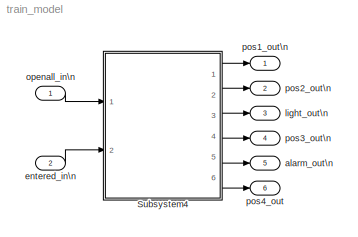
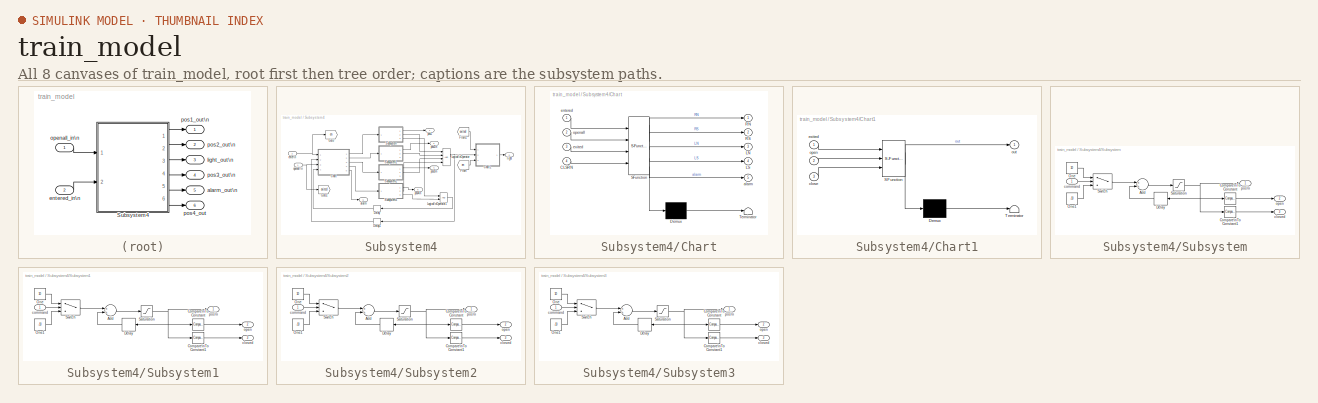
[diagram: thumbnail index - all 8 canvases of the model, root first then tree order]
MODEL train_model
KIND model
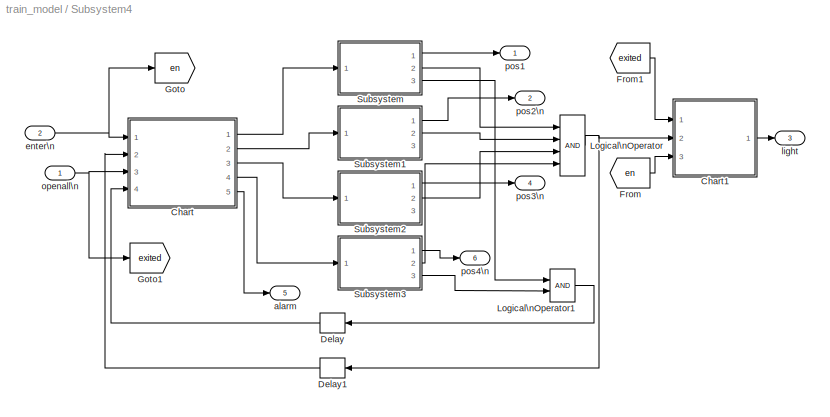
BLOCK [SubSystem] Subsystem4
  Ports = [2, 6]
  RequestExecContextInheritance = off
  SID = 112
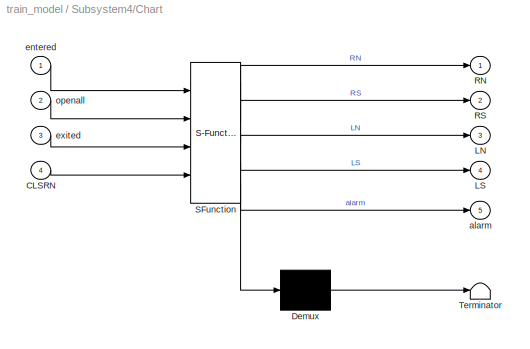
BLOCK [SubSystem] Subsystem4/Chart
  ErrorFcn = Stateflow.Translate.translate
  PermitHierarchicalResolution = ExplicitOnly
  Ports = [4, 5]
  RequestExecContextInheritance = off
  SFBlockType = Chart
  SID = 5
  TreatAsAtomicUnit = on
BLOCK [Demux] Subsystem4/Chart/ Demux 
  Outputs = 1
  Ports = [1, 1]
  SID = 5::94
BLOCK [S-Function] Subsystem4/Chart/ SFunction 
  EnableBusSupport = on
  FunctionName = sf_sfun
  PortCounts = [4 6]
  Ports = [4, 6]
  SFcnIsStateOwnerBlock = off
  SFunctionDeploymentMode = off
  SID = 5::93
  Tag = Stateflow S-Function train_model 3
BLOCK [Terminator] Subsystem4/Chart/ Terminator 
  SID = 5::95
BLOCK [Inport] Subsystem4/Chart/CLSRN
  IconDisplay = Port number
  Port = 4
  SID = 5::108
BLOCK [Outport] Subsystem4/Chart/LN
  IconDisplay = Port number
  Port = 3
  SID = 5::105
BLOCK [Outport] Subsystem4/Chart/LS
  IconDisplay = Port number
  Port = 4
  SID = 5::106
BLOCK [Outport] Subsystem4/Chart/RN
  IconDisplay = Port number
  SID = 5::103
BLOCK [Outport] Subsystem4/Chart/RS
  IconDisplay = Port number
  Port = 2
  SID = 5::104
BLOCK [Outport] Subsystem4/Chart/alarm
  IconDisplay = Port number
  Port = 5
  SID = 5::107
BLOCK [Inport] Subsystem4/Chart/entered
  IconDisplay = Port number
  SID = 5::100
BLOCK [Inport] Subsystem4/Chart/exited
  IconDisplay = Port number
  Port = 3
  SID = 5::102
BLOCK [Inport] Subsystem4/Chart/openall
  IconDisplay = Port number
  Port = 2
  SID = 5::101
BLOCK [SubSystem] Subsystem4/Chart1
  ErrorFcn = Stateflow.Translate.translate
  PermitHierarchicalResolution = ExplicitOnly
  Ports = [3, 1]
  RequestExecContextInheritance = off
  SFBlockType = Chart
  SID = 7
  TreatAsAtomicUnit = on
BLOCK [Demux] Subsystem4/Chart1/ Demux 
  Outputs = 1
  Ports = [1, 1]
  SID = 7::94
BLOCK [S-Function] Subsystem4/Chart1/ SFunction 
  EnableBusSupport = on
  FunctionName = sf_sfun
  PortCounts = [3 2]
  Ports = [3, 2]
  SFcnIsStateOwnerBlock = off
  SFunctionDeploymentMode = off
  SID = 7::93
  Tag = Stateflow S-Function train_model 1
BLOCK [Terminator] Subsystem4/Chart1/ Terminator 
  SID = 7::95
BLOCK [Inport] Subsystem4/Chart1/close
  IconDisplay = Port number
  Port = 3
  SID = 7::99
BLOCK [Inport] Subsystem4/Chart1/exited
  IconDisplay = Port number
  SID = 7::97
BLOCK [Inport] Subsystem4/Chart1/open
  IconDisplay = Port number
  Port = 2
  SID = 7::100
BLOCK [Outport] Subsystem4/Chart1/out
  IconDisplay = Port number
  SID = 7::98
BLOCK [Delay] Subsystem4/Delay
  DelayLength = 1
  InitialCondition = 0
  InputPortMap = u0
  Ports = [1, 1]
  SID = 129
  UseCircularBuffer = on
  UserData = DataTag1
  UserDataPersistent = on
BLOCK [Delay] Subsystem4/Delay1
  DelayLength = 1
  InitialCondition = 0
  InputPortMap = u0
  Ports = [1, 1]
  SID = 131
  UseCircularBuffer = on
  UserData = DataTag2
  UserDataPersistent = on
BLOCK [From] Subsystem4/From
  GotoTag = en
  SID = 109
BLOCK [From] Subsystem4/From1
  GotoTag = exited
  SID = 111
BLOCK [Goto] Subsystem4/Goto
  GotoTag = en
  SID = 103
BLOCK [Goto] Subsystem4/Goto1
  GotoTag = exited
  SID = 110
BLOCK [Logic] Subsystem4/Logical\nOperator
  AllPortsSameDT = off
  Inputs = 4
  OutDataTypeStr = boolean
  Ports = [4, 1]
  SID = 57
BLOCK [Logic] Subsystem4/Logical\nOperator1
  AllPortsSameDT = off
  OutDataTypeStr = boolean
  Ports = [2, 1]
  SID = 127
BLOCK [SubSystem] Subsystem4/Subsystem
  Ports = [1, 3]
  RequestExecContextInheritance = off
  SID = 59
BLOCK [Sum] Subsystem4/Subsystem/Add
  InputSameDT = off
  OutDataTypeStr = Inherit: Inherit via internal rule
  Ports = [2, 1]
  SID = 13
  SaturateOnIntegerOverflow = off
BLOCK [Reference] Subsystem4/Subsystem/Compare\nTo Constant  REF=simulink/Logic and Bit\nOperations/Compare\nTo Constant
  OutDataTypeStr = boolean
  Ports = [1, 1]
  SID = 19
  SourceBlock = simulink/Logic and Bit\nOperations/Compare\nTo Constant
  SourceProductBaseCode = SL
  SourceProductName = Simulink
  SourceType = Compare To Constant
  ZeroCross = on
  const = 80
  relop = >=
BLOCK [Reference] Subsystem4/Subsystem/Compare\nTo Constant1  REF=simulink/Logic and Bit\nOperations/Compare\nTo Constant
  OutDataTypeStr = boolean
  Ports = [1, 1]
  SID = 20
  SourceBlock = simulink/Logic and Bit\nOperations/Compare\nTo Constant
  SourceProductBaseCode = SL
  SourceProductName = Simulink
  SourceType = Compare To Constant
  ZeroCross = on
  const = 10
  relop = <
BLOCK [Delay] Subsystem4/Subsystem/Delay
  DelayLength = 1
  InitialCondition = 0
  InputPortMap = u0
  Ports = [1, 1]
  SID = 10
BLOCK [Constant] Subsystem4/Subsystem/One
  OutDataTypeStr = Inherit: Inherit via back propagation
  SID = 14
  Value = 10
BLOCK [Constant] Subsystem4/Subsystem/One1
  OutDataTypeStr = Inherit: Inherit via back propagation
  SID = 15
  Value = -10
BLOCK [Saturate] Subsystem4/Subsystem/Saturation
  InputPortMap = u0
  LowerLimit = 0
  Ports = [1, 1]
  SID = 11
  UpperLimit = 90
BLOCK [Switch] Subsystem4/Subsystem/Switch
  Criteria = u2 > Threshold
  InputSameDT = off
  SID = 9
  SaturateOnIntegerOverflow = off
BLOCK [Outport] Subsystem4/Subsystem/closed
  IconDisplay = Port number
  Port = 3
  SID = 63
BLOCK [Inport] Subsystem4/Subsystem/command
  IconDisplay = Port number
  OutDataTypeStr = boolean
  SID = 60
BLOCK [Outport] Subsystem4/Subsystem/open
  IconDisplay = Port number
  Port = 2
  SID = 62
BLOCK [Outport] Subsystem4/Subsystem/pos\n
  IconDisplay = Port number
  SID = 61
BLOCK [SubSystem] Subsystem4/Subsystem1
  Ports = [1, 3]
  RequestExecContextInheritance = off
  SID = 64
BLOCK [Sum] Subsystem4/Subsystem1/Add
  InputSameDT = off
  OutDataTypeStr = Inherit: Inherit via internal rule
  Ports = [2, 1]
  SID = 66
  SaturateOnIntegerOverflow = off
BLOCK [Reference] Subsystem4/Subsystem1/Compare\nTo Constant  REF=simulink/Logic and Bit\nOperations/Compare\nTo Constant
  OutDataTypeStr = boolean
  Ports = [1, 1]
  SID = 67
  SourceBlock = simulink/Logic and Bit\nOperations/Compare\nTo Constant
  SourceProductBaseCode = SL
  SourceProductName = Simulink
  SourceType = Compare To Constant
  ZeroCross = on
  const = 80
  relop = >=
BLOCK [Reference] Subsystem4/Subsystem1/Compare\nTo Constant1  REF=simulink/Logic and Bit\nOperations/Compare\nTo Constant
  OutDataTypeStr = boolean
  Ports = [1, 1]
  SID = 68
  SourceBlock = simulink/Logic and Bit\nOperations/Compare\nTo Constant
  SourceProductBaseCode = SL
  SourceProductName = Simulink
  SourceType = Compare To Constant
  ZeroCross = on
  const = 10
  relop = <
BLOCK [Delay] Subsystem4/Subsystem1/Delay
  DelayLength = 1
  InitialCondition = 0
  InputPortMap = u0
  Ports = [1, 1]
  SID = 69
BLOCK [Constant] Subsystem4/Subsystem1/One
  OutDataTypeStr = Inherit: Inherit via back propagation
  SID = 70
  Value = 10
BLOCK [Constant] Subsystem4/Subsystem1/One1
  OutDataTypeStr = Inherit: Inherit via back propagation
  SID = 71
  Value = -10
BLOCK [Saturate] Subsystem4/Subsystem1/Saturation
  InputPortMap = u0
  LowerLimit = 0
  Ports = [1, 1]
  SID = 72
  UpperLimit = 90
BLOCK [Switch] Subsystem4/Subsystem1/Switch
  Criteria = u2 > Threshold
  InputSameDT = off
  SID = 73
  SaturateOnIntegerOverflow = off
BLOCK [Outport] Subsystem4/Subsystem1/closed
  IconDisplay = Port number
  Port = 3
  SID = 76
BLOCK [Inport] Subsystem4/Subsystem1/command
  IconDisplay = Port number
  SID = 65
BLOCK [Outport] Subsystem4/Subsystem1/open
  IconDisplay = Port number
  Port = 2
  SID = 75
BLOCK [Outport] Subsystem4/Subsystem1/pos\n
  IconDisplay = Port number
  SID = 74
BLOCK [SubSystem] Subsystem4/Subsystem2
  Ports = [1, 3]
  RequestExecContextInheritance = off
  SID = 77
BLOCK [Sum] Subsystem4/Subsystem2/Add
  InputSameDT = off
  OutDataTypeStr = Inherit: Inherit via internal rule
  Ports = [2, 1]
  SID = 79
  SaturateOnIntegerOverflow = off
BLOCK [Reference] Subsystem4/Subsystem2/Compare\nTo Constant  REF=simulink/Logic and Bit\nOperations/Compare\nTo Constant
  OutDataTypeStr = boolean
  Ports = [1, 1]
  SID = 80
  SourceBlock = simulink/Logic and Bit\nOperations/Compare\nTo Constant
  SourceProductBaseCode = SL
  SourceProductName = Simulink
  SourceType = Compare To Constant
  ZeroCross = on
  const = 80
  relop = >=
BLOCK [Reference] Subsystem4/Subsystem2/Compare\nTo Constant1  REF=simulink/Logic and Bit\nOperations/Compare\nTo Constant
  OutDataTypeStr = boolean
  Ports = [1, 1]
  SID = 81
  SourceBlock = simulink/Logic and Bit\nOperations/Compare\nTo Constant
  SourceProductBaseCode = SL
  SourceProductName = Simulink
  SourceType = Compare To Constant
  ZeroCross = on
  const = 10
  relop = <
BLOCK [Delay] Subsystem4/Subsystem2/Delay
  DelayLength = 1
  InitialCondition = 0
  InputPortMap = u0
  Ports = [1, 1]
  SID = 82
BLOCK [Constant] Subsystem4/Subsystem2/One
  OutDataTypeStr = Inherit: Inherit via back propagation
  SID = 83
  Value = 10
BLOCK [Constant] Subsystem4/Subsystem2/One1
  OutDataTypeStr = Inherit: Inherit via back propagation
  SID = 84
  Value = -10
BLOCK [Saturate] Subsystem4/Subsystem2/Saturation
  InputPortMap = u0
  LowerLimit = 0
  Ports = [1, 1]
  SID = 85
  UpperLimit = 90
BLOCK [Switch] Subsystem4/Subsystem2/Switch
  Criteria = u2 ~= 0
  InputSameDT = off
  SID = 86
  SaturateOnIntegerOverflow = off
BLOCK [Outport] Subsystem4/Subsystem2/closed
  IconDisplay = Port number
  Port = 3
  SID = 89
BLOCK [Inport] Subsystem4/Subsystem2/command
  IconDisplay = Port number
  SID = 78
BLOCK [Outport] Subsystem4/Subsystem2/open
  IconDisplay = Port number
  Port = 2
  SID = 88
BLOCK [Outport] Subsystem4/Subsystem2/pos\n
  IconDisplay = Port number
  SID = 87
BLOCK [SubSystem] Subsystem4/Subsystem3
  Ports = [1, 3]
  RequestExecContextInheritance = off
  SID = 90
BLOCK [Sum] Subsystem4/Subsystem3/Add
  InputSameDT = off
  OutDataTypeStr = Inherit: Inherit via internal rule
  Ports = [2, 1]
  SID = 92
  SaturateOnIntegerOverflow = off
BLOCK [Reference] Subsystem4/Subsystem3/Compare\nTo Constant  REF=simulink/Logic and Bit\nOperations/Compare\nTo Constant
  OutDataTypeStr = boolean
  Ports = [1, 1]
  SID = 93
  SourceBlock = simulink/Logic and Bit\nOperations/Compare\nTo Constant
  SourceProductBaseCode = SL
  SourceProductName = Simulink
  SourceType = Compare To Constant
  ZeroCross = on
  const = 80
  relop = >=
BLOCK [Reference] Subsystem4/Subsystem3/Compare\nTo Constant1  REF=simulink/Logic and Bit\nOperations/Compare\nTo Constant
  OutDataTypeStr = boolean
  Ports = [1, 1]
  SID = 94
  SourceBlock = simulink/Logic and Bit\nOperations/Compare\nTo Constant
  SourceProductBaseCode = SL
  SourceProductName = Simulink
  SourceType = Compare To Constant
  ZeroCross = on
  const = 10
  relop = <
BLOCK [Delay] Subsystem4/Subsystem3/Delay
  DelayLength = 1
  InitialCondition = 0
  InputPortMap = u0
  Ports = [1, 1]
  SID = 95
BLOCK [Constant] Subsystem4/Subsystem3/One
  OutDataTypeStr = Inherit: Inherit via back propagation
  SID = 96
  Value = 10
BLOCK [Constant] Subsystem4/Subsystem3/One1
  OutDataTypeStr = Inherit: Inherit via back propagation
  SID = 97
  Value = -10
BLOCK [Saturate] Subsystem4/Subsystem3/Saturation
  InputPortMap = u0
  LowerLimit = 0
  Ports = [1, 1]
  SID = 98
  UpperLimit = 90
BLOCK [Switch] Subsystem4/Subsystem3/Switch
  Criteria = u2 > Threshold
  InputSameDT = off
  SID = 99
  SaturateOnIntegerOverflow = off
BLOCK [Outport] Subsystem4/Subsystem3/closed
  IconDisplay = Port number
  Port = 3
  SID = 102
BLOCK [Inport] Subsystem4/Subsystem3/command
  IconDisplay = Port number
  SID = 91
BLOCK [Outport] Subsystem4/Subsystem3/open
  IconDisplay = Port number
  Port = 2
  SID = 101
BLOCK [Outport] Subsystem4/Subsystem3/pos\n
  IconDisplay = Port number
  SID = 100
BLOCK [Outport] Subsystem4/alarm
  IconDisplay = Port number
  Port = 5
  SID = 123
BLOCK [Inport] Subsystem4/enter\n
  IconDisplay = Port number
  Port = 2
  SID = 116
BLOCK [Outport] Subsystem4/light
  IconDisplay = Port number
  Port = 3
  SID = 120
BLOCK [Inport] Subsystem4/openall\n
  IconDisplay = Port number
  SID = 115
BLOCK [Outport] Subsystem4/pos1
  IconDisplay = Port number
  SID = 117
BLOCK [Outport] Subsystem4/pos2\n
  IconDisplay = Port number
  Port = 2
  SID = 119
BLOCK [Outport] Subsystem4/pos3\n
  IconDisplay = Port number
  Port = 4
  SID = 122
BLOCK [Outport] Subsystem4/pos4\n
  IconDisplay = Port number
  Port = 6
  SID = 125
BLOCK [Outport] alarm_out\n
  IconDisplay = Port number
  Port = 5
  SID = 136
BLOCK [Inport] entered_in\n
  IconDisplay = Port number
  Port = 2
  SID = 108
BLOCK [Outport] light_out\n
  IconDisplay = Port number
  Port = 3
  SID = 134
BLOCK [Inport] openall_in\n
  IconDisplay = Port number
  SID = 107
BLOCK [Outport] pos1_out\n
  IconDisplay = Port number
  SID = 132
BLOCK [Outport] pos2_out\n
  IconDisplay = Port number
  Port = 2
  SID = 133
BLOCK [Outport] pos3_out\n
  IconDisplay = Port number
  Port = 4
  SID = 135
BLOCK [Outport] pos4_out
  IconDisplay = Port number
  Port = 6
  SID = 137
LINE Subsystem4/Chart/ Demux :1 -> Subsystem4/Chart/ Terminator :1
LINE Subsystem4/Chart/ SFunction :1 -> Subsystem4/Chart/ Demux :1
LINE Subsystem4/Chart/ SFunction :2 -> Subsystem4/Chart/RN:1
LINE Subsystem4/Chart/ SFunction :3 -> Subsystem4/Chart/RS:1
LINE Subsystem4/Chart/ SFunction :4 -> Subsystem4/Chart/LN:1
LINE Subsystem4/Chart/ SFunction :5 -> Subsystem4/Chart/LS:1
LINE Subsystem4/Chart/ SFunction :6 -> Subsystem4/Chart/alarm:1
LINE Subsystem4/Chart/CLSRN:1 -> Subsystem4/Chart/ SFunction :4
LINE Subsystem4/Chart/entered:1 -> Subsystem4/Chart/ SFunction :1
LINE Subsystem4/Chart/exited:1 -> Subsystem4/Chart/ SFunction :3
LINE Subsystem4/Chart/openall:1 -> Subsystem4/Chart/ SFunction :2
LINE Subsystem4/Chart1/ Demux :1 -> Subsystem4/Chart1/ Terminator :1
LINE Subsystem4/Chart1/ SFunction :1 -> Subsystem4/Chart1/ Demux :1
LINE Subsystem4/Chart1/ SFunction :2 -> Subsystem4/Chart1/out:1
LINE Subsystem4/Chart1/close:1 -> Subsystem4/Chart1/ SFunction :3
LINE Subsystem4/Chart1/exited:1 -> Subsystem4/Chart1/ SFunction :1
LINE Subsystem4/Chart1/open:1 -> Subsystem4/Chart1/ SFunction :2
LINE Subsystem4/Chart1:1 -> Subsystem4/light:1
LINE Subsystem4/Chart:1 -> Subsystem4/Subsystem:1
LINE Subsystem4/Chart:2 -> Subsystem4/Subsystem1:1
LINE Subsystem4/Chart:3 -> Subsystem4/Subsystem2:1
LINE Subsystem4/Chart:4 -> Subsystem4/Subsystem3:1
LINE Subsystem4/Chart:5 -> Subsystem4/alarm:1
LINE Subsystem4/Delay1:1 -> Subsystem4/Chart:2
LINE Subsystem4/Delay:1 -> Subsystem4/Chart:4
LINE Subsystem4/From1:1 -> Subsystem4/Chart1:1
LINE Subsystem4/From:1 -> Subsystem4/Chart1:3
LINE Subsystem4/Logical\nOperator1:1 -> Subsystem4/Delay:1
NET Subsystem4/Logical\nOperator:1 -> Subsystem4/Chart1:2, Subsystem4/Delay1:1
LINE Subsystem4/Subsystem/Add:1 -> Subsystem4/Subsystem/Saturation:1
LINE Subsystem4/Subsystem/Compare\nTo Constant1:1 -> Subsystem4/Subsystem/closed:1
LINE Subsystem4/Subsystem/Compare\nTo Constant:1 -> Subsystem4/Subsystem/open:1
LINE Subsystem4/Subsystem/Delay:1 -> Subsystem4/Subsystem/Add:2
LINE Subsystem4/Subsystem/One1:1 -> Subsystem4/Subsystem/Switch:3
LINE Subsystem4/Subsystem/One:1 -> Subsystem4/Subsystem/Switch:1
NET Subsystem4/Subsystem/Saturation:1 -> Subsystem4/Subsystem/Compare\nTo Constant1:1, Subsystem4/Subsystem/Compare\nTo Constant:1, Subsystem4/Subsystem/Delay:1, Subsystem4/Subsystem/pos\n:1
LINE Subsystem4/Subsystem/Switch:1 -> Subsystem4/Subsystem/Add:1
LINE Subsystem4/Subsystem/command:1 -> Subsystem4/Subsystem/Switch:2
LINE Subsystem4/Subsystem1/Add:1 -> Subsystem4/Subsystem1/Saturation:1
LINE Subsystem4/Subsystem1/Compare\nTo Constant1:1 -> Subsystem4/Subsystem1/closed:1
LINE Subsystem4/Subsystem1/Compare\nTo Constant:1 -> Subsystem4/Subsystem1/open:1
LINE Subsystem4/Subsystem1/Delay:1 -> Subsystem4/Subsystem1/Add:2
LINE Subsystem4/Subsystem1/One1:1 -> Subsystem4/Subsystem1/Switch:3
LINE Subsystem4/Subsystem1/One:1 -> Subsystem4/Subsystem1/Switch:1
NET Subsystem4/Subsystem1/Saturation:1 -> Subsystem4/Subsystem1/Compare\nTo Constant1:1, Subsystem4/Subsystem1/Compare\nTo Constant:1, Subsystem4/Subsystem1/Delay:1, Subsystem4/Subsystem1/pos\n:1
LINE Subsystem4/Subsystem1/Switch:1 -> Subsystem4/Subsystem1/Add:1
LINE Subsystem4/Subsystem1/command:1 -> Subsystem4/Subsystem1/Switch:2
LINE Subsystem4/Subsystem1:1 -> Subsystem4/pos2\n:1
LINE Subsystem4/Subsystem1:2 -> Subsystem4/Logical\nOperator:2
LINE Subsystem4/Subsystem2/Add:1 -> Subsystem4/Subsystem2/Saturation:1
LINE Subsystem4/Subsystem2/Compare\nTo Constant1:1 -> Subsystem4/Subsystem2/closed:1
LINE Subsystem4/Subsystem2/Compare\nTo Constant:1 -> Subsystem4/Subsystem2/open:1
LINE Subsystem4/Subsystem2/Delay:1 -> Subsystem4/Subsystem2/Add:2
LINE Subsystem4/Subsystem2/One1:1 -> Subsystem4/Subsystem2/Switch:3
LINE Subsystem4/Subsystem2/One:1 -> Subsystem4/Subsystem2/Switch:1
NET Subsystem4/Subsystem2/Saturation:1 -> Subsystem4/Subsystem2/Compare\nTo Constant1:1, Subsystem4/Subsystem2/Compare\nTo Constant:1, Subsystem4/Subsystem2/Delay:1, Subsystem4/Subsystem2/pos\n:1
LINE Subsystem4/Subsystem2/Switch:1 -> Subsystem4/Subsystem2/Add:1
LINE Subsystem4/Subsystem2/command:1 -> Subsystem4/Subsystem2/Switch:2
LINE Subsystem4/Subsystem2:1 -> Subsystem4/pos3\n:1
LINE Subsystem4/Subsystem2:2 -> Subsystem4/Logical\nOperator:3
LINE Subsystem4/Subsystem3/Add:1 -> Subsystem4/Subsystem3/Saturation:1
LINE Subsystem4/Subsystem3/Compare\nTo Constant1:1 -> Subsystem4/Subsystem3/closed:1
LINE Subsystem4/Subsystem3/Compare\nTo Constant:1 -> Subsystem4/Subsystem3/open:1
LINE Subsystem4/Subsystem3/Delay:1 -> Subsystem4/Subsystem3/Add:2
LINE Subsystem4/Subsystem3/One1:1 -> Subsystem4/Subsystem3/Switch:3
LINE Subsystem4/Subsystem3/One:1 -> Subsystem4/Subsystem3/Switch:1
NET Subsystem4/Subsystem3/Saturation:1 -> Subsystem4/Subsystem3/Compare\nTo Constant1:1, Subsystem4/Subsystem3/Compare\nTo Constant:1, Subsystem4/Subsystem3/Delay:1, Subsystem4/Subsystem3/pos\n:1
LINE Subsystem4/Subsystem3/Switch:1 -> Subsystem4/Subsystem3/Add:1
LINE Subsystem4/Subsystem3/command:1 -> Subsystem4/Subsystem3/Switch:2
LINE Subsystem4/Subsystem3:1 -> Subsystem4/pos4\n:1
LINE Subsystem4/Subsystem3:2 -> Subsystem4/Logical\nOperator:4
LINE Subsystem4/Subsystem3:3 -> Subsystem4/Logical\nOperator1:2
LINE Subsystem4/Subsystem:1 -> Subsystem4/pos1:1
LINE Subsystem4/Subsystem:2 -> Subsystem4/Logical\nOperator:1
LINE Subsystem4/Subsystem:3 -> Subsystem4/Logical\nOperator1:1
NET Subsystem4/enter\n:1 -> Subsystem4/Chart:1, Subsystem4/Goto:1
NET Subsystem4/openall\n:1 -> Subsystem4/Chart:3, Subsystem4/Goto1:1
LINE Subsystem4:1 -> pos1_out\n:1
LINE Subsystem4:2 -> pos2_out\n:1
LINE Subsystem4:3 -> light_out\n:1
LINE Subsystem4:4 -> pos3_out\n:1
LINE Subsystem4:5 -> alarm_out\n:1
LINE Subsystem4:6 -> pos4_out:1
LINE entered_in\n:1 -> Subsystem4:2
LINE openall_in\n:1 -> Subsystem4:1
note: NET lines group one-source signal fan-out (src -> all destinations, sorted); 1:1 wires keep LINE
CHART Subsystem4/Chart1 states=4 transitions=5
  STATE_LABEL 'orange_open\\nen:\\nout = 2;'
  STATE_LABEL 'Green\\nen:\\nout = 1;\\n'
  STATE_LABEL 'orange_close\\nen:\\nout = 2;\\ncount = 0;\\ndu:\\ncount = count + 1;'
  STATE_LABEL 'Red\\nen:\\nout = 3;'
CHART Subsystem4/Chart states=6 transitions=10
  STATE_LABEL 'Openall\\nen:\\nLN = false;\\nLS = false;\\nRN = false;\\nRS = false;\\nSTATEPOS = 5;\\ncount = 0;\\ndu:\\ncount = count + 1'
  STATE_LABEL 'Opened\\nen:\\nLN = true;\\nLS = true;\\nRN = true;\\nRS = true;\\nSTATEPOS = 1;\\nalarm = false;'
  STATE_LABEL 'alert\\nen, du: alarm = true;'
  STATE_LABEL 'LNRS\\nen:\\nLN = false;\\nRS = false;\\ncount = 0;\\nSTATEPOS = 4;\\ndu:\\ncount = count+1'
  STATE_LABEL 'entered\\nen:\\nLS = false;\\nRN = false;\\nSTATEPOS = 2;\\ncount = 0;\\ndu:\\ncount = count + 1;\\n'
  STATE_LABEL 'closedLSRN\\nen:\\ncount = 0;\\nSTATEPOS = 3;\\ndu:\\ncount = count +1\\n'
